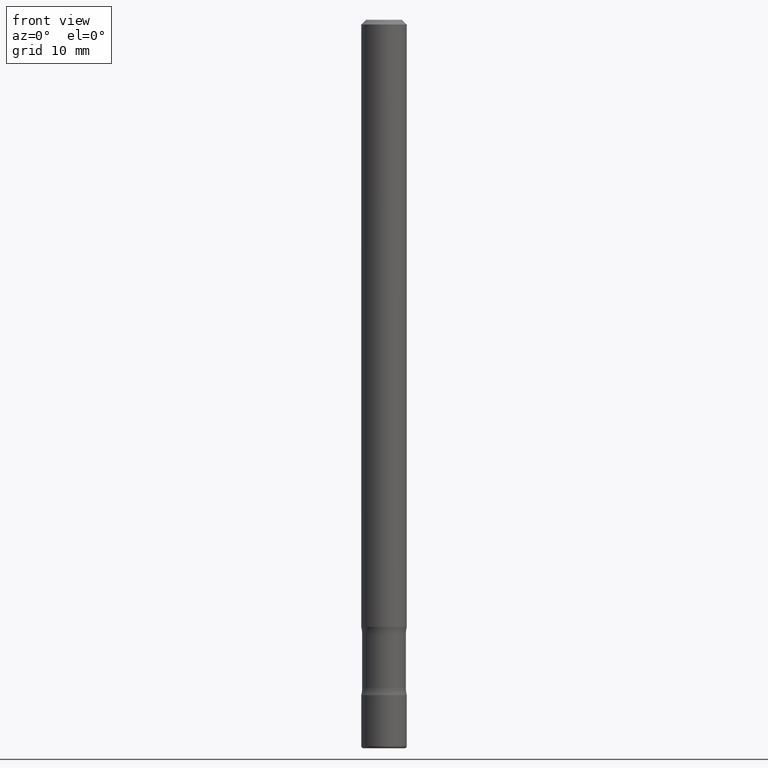
[diagram: clean part render]
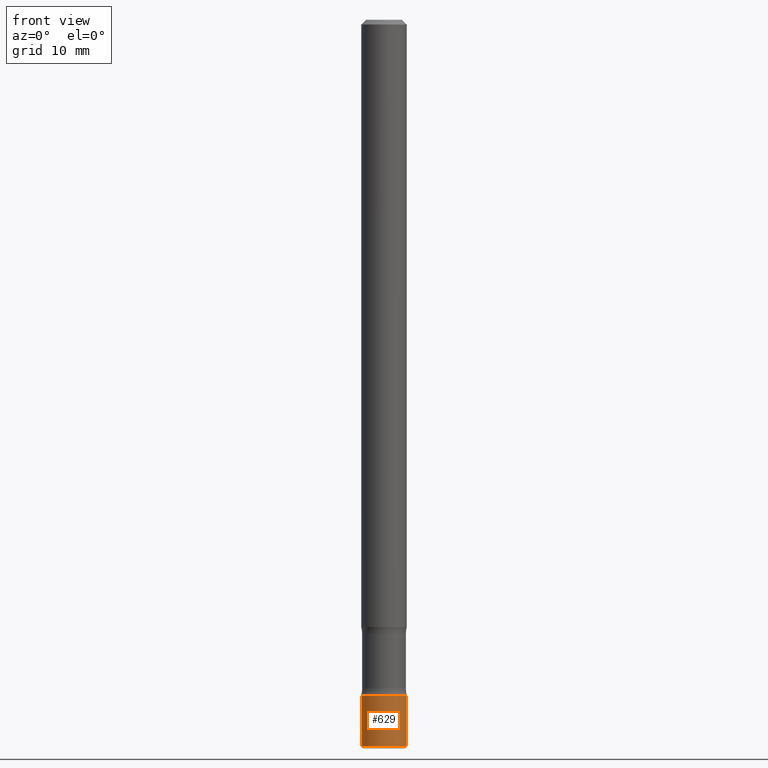
[diagram: same view with one face highlighted and labeled with its STEP entity id]
A machine part, front view. The second image highlights one B-rep face of the part: STEP entity #629.
In plain terms, the highlighted cylindrical surface (edge-blend (fillet) strip) has radius 2.3812 mm, axis along (-0, 0, 1).
Its self-contained STEP definition (entity closure, byte-faithful):
#7 = EDGE_CURVE ( 'NONE', #788, #540, #284, .T. ) ;
#10 = CARTESIAN_POINT ( 'NONE',  ( 0.09374999999999998612, -1.036516065062364471E-14, -2.781200000000000561 ) ) ;
#50 = CARTESIAN_POINT ( 'NONE',  ( 0.09374999999999998612, -6.546527510330874055E-16, 4.571415727308689105E-30 ) ) ;
#97 = ORIENTED_EDGE ( 'NONE', *, *, #460, .T. ) ;
#130 = DIRECTION ( 'NONE',  ( -2.445468806185136877E-29, 3.491481338843145188E-15, 1.000000000000000000 ) ) ;
#133 = VECTOR ( 'NONE', #130, 39.37007874015748143 ) ;
#227 = CARTESIAN_POINT ( 'NONE',  ( 6.801337843762102328E-29, -9.710507899590557993E-15, -2.781200000000000561 ) ) ;
#237 = LINE ( 'NONE', #50, #442 ) ;
#276 = DIRECTION ( 'NONE',  ( 1.000000000000000000, -6.982962677686263555E-15, 0.000000000000000000 ) ) ;
#284 = LINE ( 'NONE', #560, #133 ) ;
#285 = DIRECTION ( 'NONE',  ( -2.445468806185136597E-29, 3.491481338843145583E-15, 1.000000000000000000 ) ) ;
#325 = AXIS2_PLACEMENT_3D ( 'NONE', #510, #285, #752 ) ;
#348 = DIRECTION ( 'NONE',  ( -2.445468806185136597E-29, 3.491481338843145583E-15, 1.000000000000000000 ) ) ;
#390 = CIRCLE ( 'NONE', #625, 0.09374999999999998612 ) ;
#400 = EDGE_CURVE ( 'NONE', #540, #422, #390, .T. ) ;
#412 = ORIENTED_EDGE ( 'NONE', *, *, #7, .F. ) ;
#422 = VERTEX_POINT ( 'NONE', #10 ) ;
#433 = ORIENTED_EDGE ( 'NONE', *, *, #537, .T. ) ;
#435 = CYLINDRICAL_SURFACE ( 'NONE', #664, 0.09374999999999998612 ) ;
#442 = VECTOR ( 'NONE', #600, 39.37007874015748143 ) ;
#460 = EDGE_CURVE ( 'NONE', #788, #484, #742, .T. ) ;
#484 = VERTEX_POINT ( 'NONE', #513 ) ;
#510 = CARTESIAN_POINT ( 'NONE',  ( 7.311951730493558245E-29, -1.043952920314100628E-14, -2.990000000000000213 ) ) ;
#513 = CARTESIAN_POINT ( 'NONE',  ( 0.09375000000000016653, -1.109418195417409615E-14, -2.990000000000000213 ) ) ;
#537 = EDGE_CURVE ( 'NONE', #484, #422, #237, .T. ) ;
#540 = VERTEX_POINT ( 'NONE', #797 ) ;
#552 = CARTESIAN_POINT ( 'NONE',  ( 0.000000000000000000, 0.000000000000000000, 0.000000000000000000 ) ) ;
#558 = FACE_OUTER_BOUND ( 'NONE', #704, .T. ) ;
#560 = CARTESIAN_POINT ( 'NONE',  ( -0.09374999999999998612, 6.661338147750938256E-16, -4.611501647113973295E-30 ) ) ;
#595 = CARTESIAN_POINT ( 'NONE',  ( -0.09375000000000016653, -9.773395388365912358E-15, -2.990000000000000213 ) ) ;
#600 = DIRECTION ( 'NONE',  ( -2.445468806185136877E-29, 3.491481338843145188E-15, 1.000000000000000000 ) ) ;
#614 = DIRECTION ( 'NONE',  ( -2.445468806185136597E-29, 3.491481338843145583E-15, 1.000000000000000000 ) ) ;
#625 = AXIS2_PLACEMENT_3D ( 'NONE', #227, #348, #276 ) ;
#629 = ADVANCED_FACE ( 'NONE', ( #558 ), #435, .T. ) ;
#664 = AXIS2_PLACEMENT_3D ( 'NONE', #552, #614, #728 ) ;
#704 = EDGE_LOOP ( 'NONE', ( #412, #97, #433, #720 ) ) ;
#720 = ORIENTED_EDGE ( 'NONE', *, *, #400, .F. ) ;
#728 = DIRECTION ( 'NONE',  ( 1.000000000000000000, -6.982962677686266711E-15, 4.876176775795935793E-29 ) ) ;
#742 = CIRCLE ( 'NONE', #325, 0.09374999999999998612 ) ;
#752 = DIRECTION ( 'NONE',  ( 1.000000000000000000, -6.982962677686263555E-15, 0.000000000000000000 ) ) ;
#788 = VERTEX_POINT ( 'NONE', #595 ) ;
#797 = CARTESIAN_POINT ( 'NONE',  ( -0.09374999999999998612, -9.408884736590688213E-15, -2.781200000000000561 ) ) ;